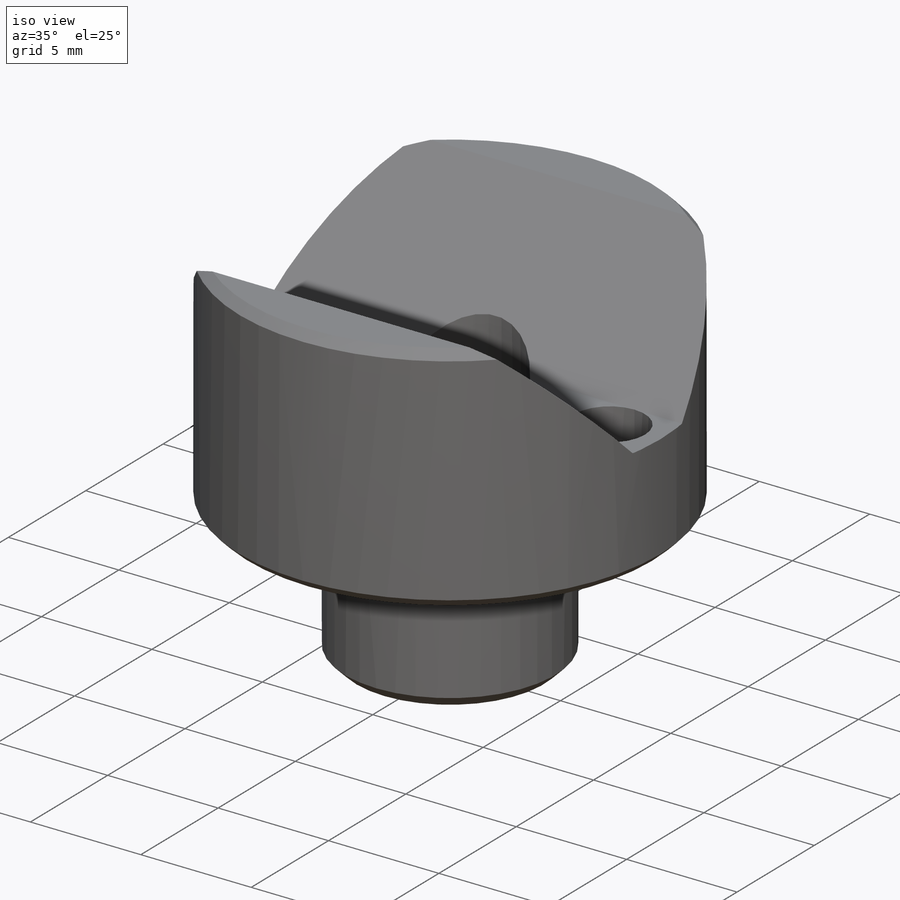
[diagram: iso view]
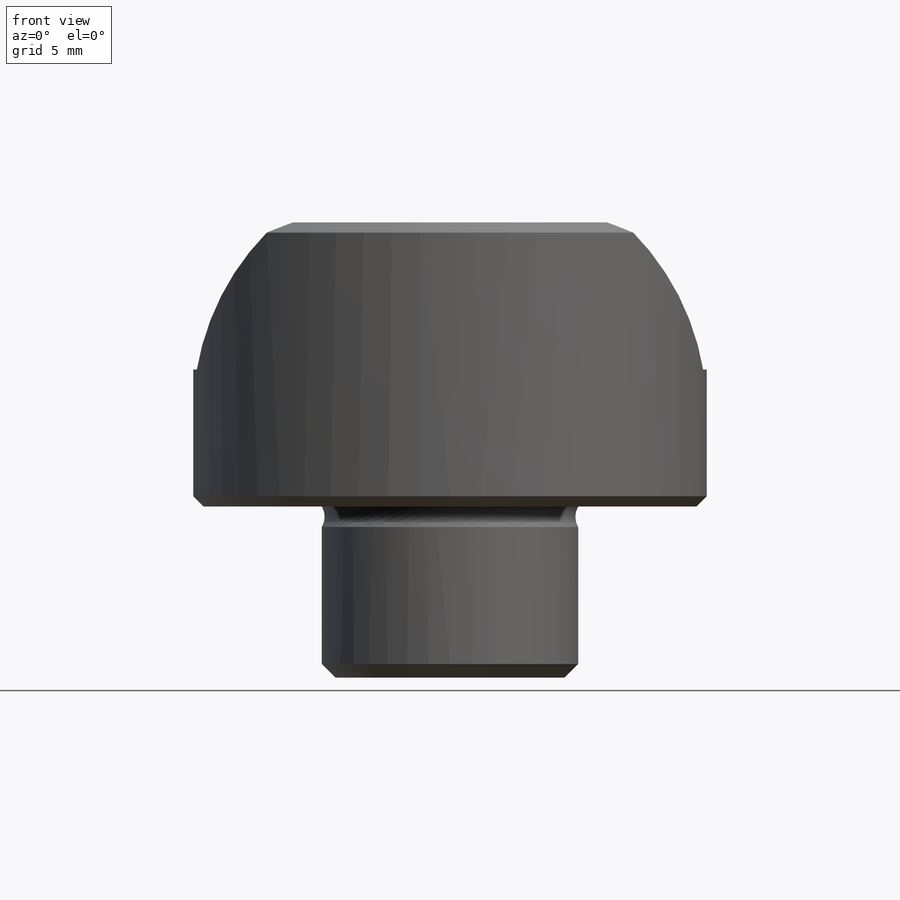
[diagram: front view]
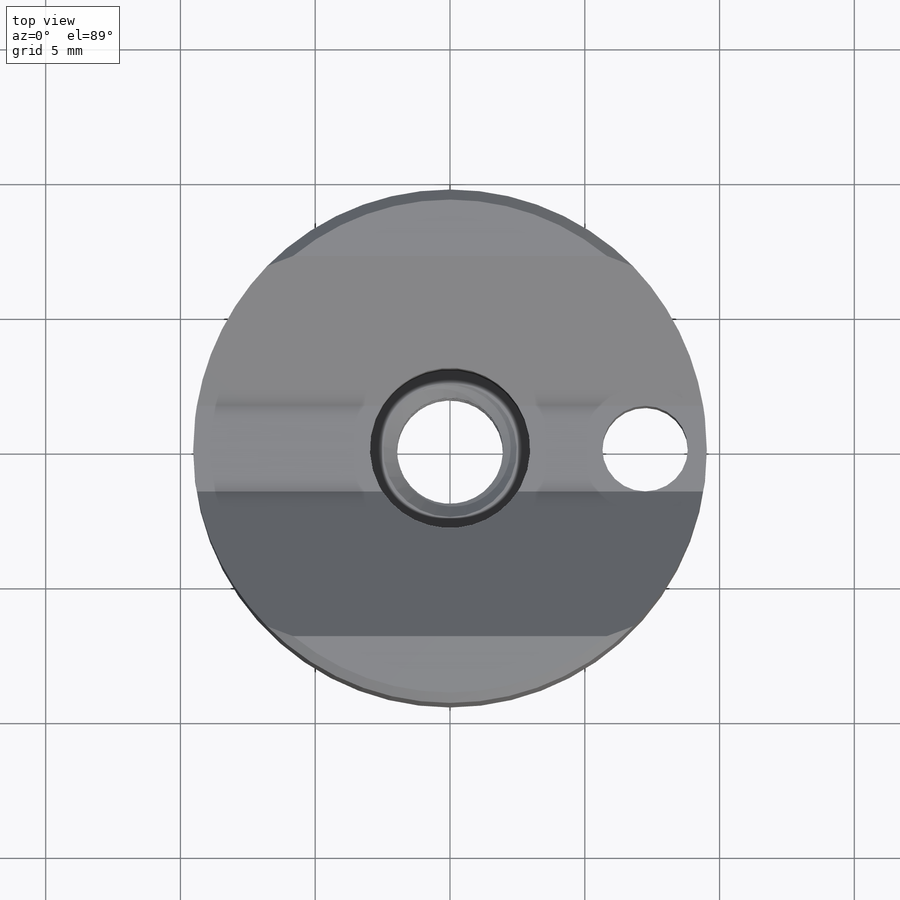
[diagram: top view]
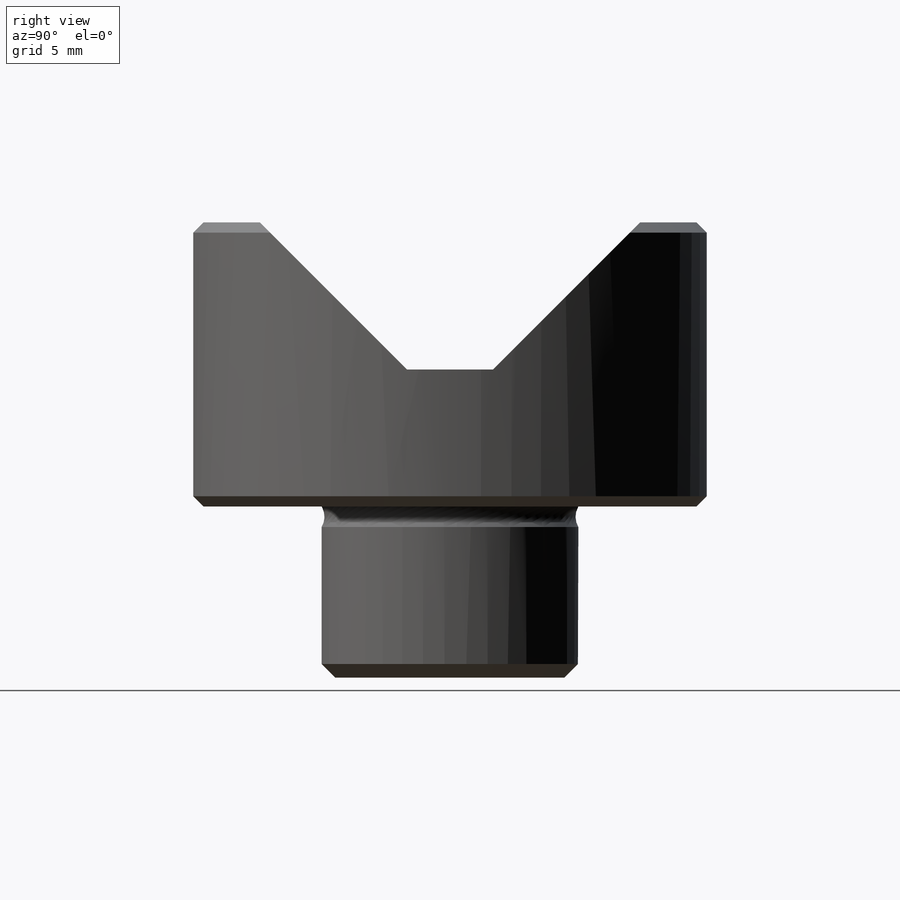
[diagram: right view]
SOLIDWORKS PART (.sldprt)
format: sldprt  version: not decoded by parser v0  size: 967,168 bytes
history: native  units: mm
features: sketch x7, plane x4, chamfer x4, cut_extrude x2, cut_revolve x2, material x1, revolve x1, thread x1, helix x1, sweep x1 + 2 further entries (+9 scaffold rows collapsed)
feature tree (35):
  scaffold x9  (default folders/planes/origin — collapsed)
  material  "440C Rc 58"
  plane  "Plane X-Y"
  plane  "Plane X-Z"
  plane  "Plane Y-Z"
  "Axis - Y"
  "Axis - Z"
  sketch  "Sketch9"  dims[D1=10.541mm D2=19.05mm D3=9.525mm D4=6.35mm]
  revolve  "Revolve1"  Angle=360deg
  sketch  "Sketch3"  dims[c1.D5=9.525mm c1.D6=38.1mm c1.D7=12.7mm c1.D1=~14.105384mm c1.B=18.288mm c1.D=13.716mm c1.D2=5.08mm c1.D3=3.175mm c1.D4=~0.004192mm c2.D5=5.588mm c2.D6=14.986mm c2.D8=~18.818564mm]
  cut_extrude  "Cut-Extrude1"  [1 undecoded]
  sketch  "Sketch7"  dims[G=5.9436mm TAP_DIA=3.937mm H=3.556mm D1=2.54mm]
  cut_revolve  "Cut-Revolve1"  [1 undecoded]
  thread  "Cosmetic Thread1"  Diameter=9.525mm THREAD-MAJOR-DIA=9.525mm  [1 undecoded]
  chamfer  "Chamfer2"  Distance=0.508mm Angle=45deg
  plane  "Plane1"  Offset=2.54mm
  sketch  "Sketch10"  dims[c1.D2=1.524mm c1.D1=17.78mm c1.D3=1.778mm c2.D2=1.778mm c2.D1=1.27mm c3.D2=0.762mm]
  cut_revolve  "Cut-Revolve2"  Angle=360deg
  sketch  "Sketch11"  dims[D1=4.953mm]
  helix  "Helix/Spiral1"  Pitch=12.7mm
  chamfer  "Chamfer3"  Distance=0.508mm Angle=45deg
  sketch  "Sketch12"  dims[c1.D4=0.127mm c1.D1=~3.095403mm c2.D1=60.0deg c2.D2=4.953mm c2.D3=3.81mm c2.D5=9.652mm]
  sweep  "Cut-Sweep1"
  sketch  "Sketch13"  dims[D1=3.175mm D2=7.239mm]
  cut_extrude  "Cut-Extrude2"  [1 undecoded]
  chamfer  "Chamfer4"  Distance=0.381mm Angle=45deg
  chamfer  "Chamfer5"  Distance=0.254mm Angle=45deg
decode coverage: 15 of 19 modeling features carry decoded parameters; 2 rows unclassified (native names shown)
note: ~ marks probable driven/reference dimensions
note: 4 parameter values undecoded
summary: no parameter record found for 3 features
note: suppression state not decoded; provenance and decode notes live in map.json
